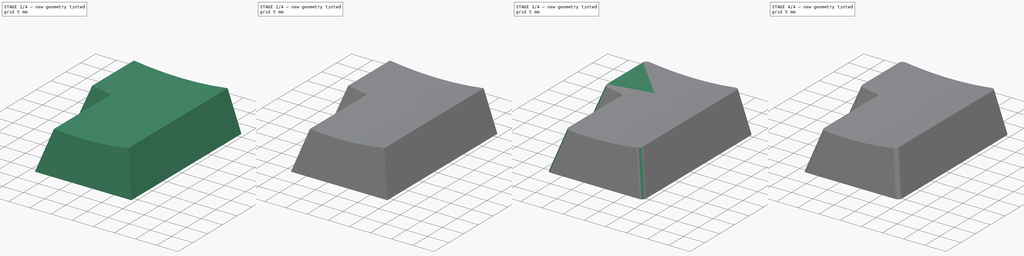
[diagram: build sequence overview — one tinted view per stage of 4, left to right]
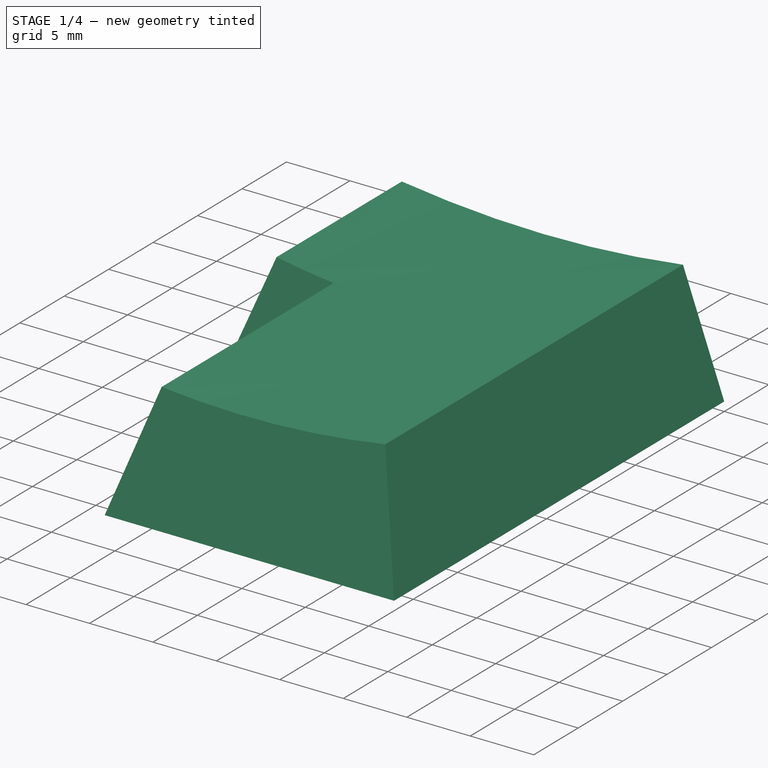
[diagram: stage 1 of 4 — iso view after this stage's code; geometry added in this stage tinted green]
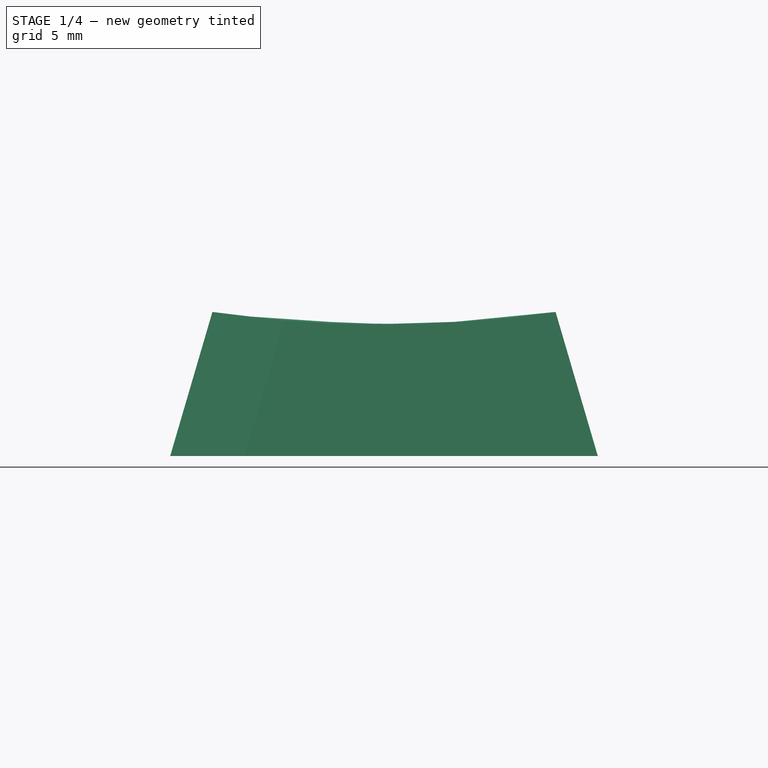
[diagram: stage 1 of 4 — front view after this stage's code; geometry added in this stage tinted green]
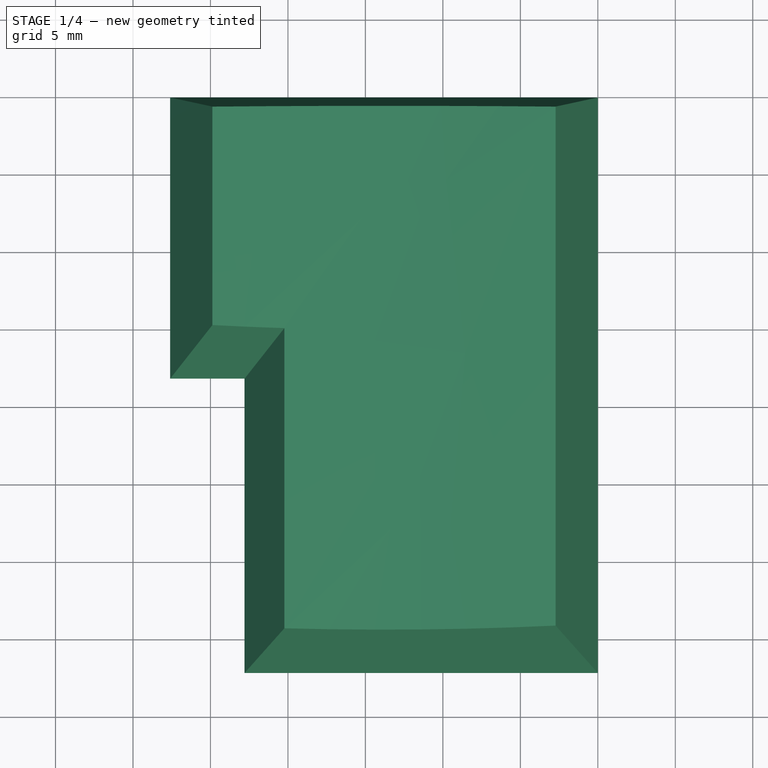
[diagram: stage 1 of 4 — top view after this stage's code; geometry added in this stage tinted green]
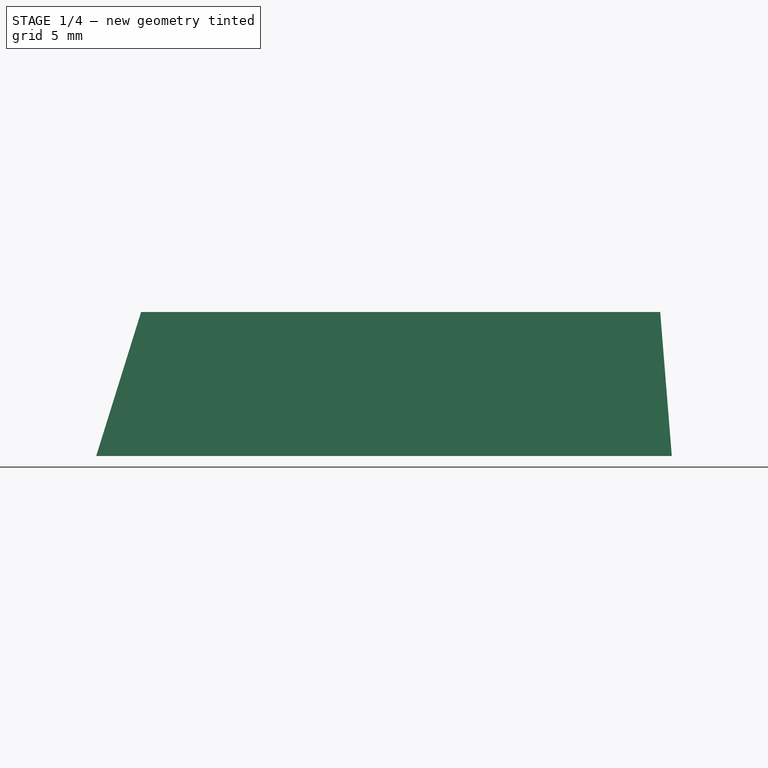
[diagram: stage 1 of 4 — right view after this stage's code; geometry added in this stage tinted green]
FCSTD DOCUMENT  (FreeCAD 1.1R20260325 (Git shallow))
Label: Caps-ISO-return
License: Creative Commons Attribution 4.0
objects: Part::DatumPlane×7, Sketcher::SketchObject×5, Part::DatumLine×5, PartDesign::Fillet×3, PartDesign::Pad×2, App::Point×1, Spreadsheet::Sheet×1, PartDesign::AdditiveLoft×1, PartDesign::Pocket×1, PartDesign::Thickness×1, PartDesign::Chamfer×1, PartDesign::Body×1
note: 38 computed .brp shape members not serialized (recipe doc carries the construction recipe); baked Part::Feature solids carry a one-line shape summary decoded from their .brp

FEATURE [App::Point] Origin001
  Role = Origin
FEATURE [Spreadsheet::Sheet] Spreadsheet  label="data"
  cells = A1='row; B1='back; C1='front; A2==hiddenref(Body.Row.String); B2(back)==.B3; C2(front)==.C3; A3='R1; B3(r1back)=8.1; C3(r1front)=11.5; A4='R2; B4(r2back)=7.9; C4(r2front)=10.2; A5='R3; B5(r3back)=9; C5=11.25; A6='R4; B6=12.25; C6=11.9
  expr: .cells.Bind.B2.C2 = tuple(.cells; <<B>> + str(hiddenref(Body.Row) + 3); <<C>> + str(hiddenref(Body.Row) + 3))
FEATURE [Part::DatumPlane] DatumPlane  label="Bottom plane of reinforcements"
  AttachmentOffset = pos=(0,0,5.9) rot=(0,0,1;0rad)
  AttachmentSupport = -> [Origin]
  MapMode = 5
  Placement = pos=(0,0,5.9) rot=(0,0,1;0rad)
FEATURE [Sketcher::SketchObject] Sketch009  label="Base sketch"
  ArcFitTolerance = 1e-06
  AttachmentSupport = -> [Origin]
  ExternalTypes = [0]
  FullyConstrained = true
  MakeInternals = false
  MapMode = 5
  _ExternalGeoVersion = 1
  sketch-geometry (6):
    g0: LineSegment StartX=0 StartY=0 StartZ=0 EndX=-27.6 EndY=0 EndZ=0
    g1: LineSegment StartX=-27.6 StartY=0 StartZ=0 EndX=-27.6 EndY=-18.15 EndZ=0
    g2: LineSegment StartX=-27.6 StartY=-18.15 StartZ=0 EndX=-22.8 EndY=-18.15 EndZ=0
    g3: LineSegment StartX=-22.8 StartY=-18.15 StartZ=0 EndX=-22.8 EndY=-37.15 EndZ=0
    g4: LineSegment StartX=-22.8 StartY=-37.15 StartZ=0 EndX=0 EndY=-37.15 EndZ=0
    g5: LineSegment StartX=0 StartY=-37.15 StartZ=0 EndX=0 EndY=0 EndZ=0
  constraints (17):
    c: Coincident(g-1,g0)
    c: Coincident(g0,g1)
    c: Vertical(g1)
    c: Coincident(g1,g2)
    c: Horizontal(g2)
    c: Coincident(g2,g3)
    c: Vertical(g3)
    c: Coincident(g3,g4)
    c: Horizontal(g4)
    c: Coincident(g4,g5)
    c: Coincident(g5,g0)
    c: Vertical(g5)
    c: Horizontal(g0)
    c: DistanceX(g0,g0) = 27.6
    c: DistanceX(g4,g4) = 22.8
    c: DistanceY(g5,g5) = 37.15
    c: DistanceY(g1,g1) = 18.15
FEATURE [Sketcher::SketchObject] Sketch010  label="Top sketch"
  ArcFitTolerance = 1e-06
  AttachmentOffset = pos=(0,0,9.3) rot=(0,0,1;0rad)
  AttachmentSupport = -> [Sketch009]
  ExternalGeometry = -> [Sketch009]
  ExternalTypes = [0,0]
  FullyConstrained = true
  MakeInternals = false
  MapMode = 2
  Placement = pos=(0,0,9.3) rot=(0,0,1;0rad)
  _ExternalGeoVersion = 1
  sketch-geometry (10):
    g0: LineSegment StartX=-24.875 StartY=-0.75 StartZ=0 EndX=-2.725 EndY=-0.75 EndZ=0
    g1: LineSegment StartX=-2.725 StartY=-0.75 StartZ=0 EndX=-2.725 EndY=-34.25 EndZ=0
    g2: LineSegment StartX=-2.725 StartY=-34.25 StartZ=0 EndX=-20.075 EndY=-34.25 EndZ=0
    g3: LineSegment StartX=-20.075 StartY=-34.25 StartZ=0 EndX=-20.075 EndY=-14.85 EndZ=0
    g4: LineSegment StartX=-20.075 StartY=-14.85 StartZ=0 EndX=-24.875 EndY=-14.85 EndZ=0
    g5: LineSegment StartX=-24.875 StartY=-14.85 StartZ=0 EndX=-24.875 EndY=-0.75 EndZ=0
    g6: GeomPoint [constr] X=-13.8 Y=0 Z=0
    g7: GeomPoint [constr] X=-11.4 Y=-37.15 Z=0
    g8: GeomPoint [constr] X=-13.8 Y=-0.75 Z=0
    g9: GeomPoint [constr] X=-11.4 Y=-34.25 Z=0
  constraints (22):
    c: Horizontal(g0)
    c: Coincident(g0,g1)
    c: Vertical(g1)
    c: Coincident(g1,g2)
    c: Horizontal(g2)
    c: Coincident(g2,g3)
    c: Vertical(g3)
    c: Coincident(g3,g4)
    c: Horizontal(g4)
    c: Coincident(g4,g5)
    c: Coincident(g5,g0)
    c: Vertical(g5)
    c: DistanceY(g0,g-1) = 0.75
    c: Symmetric(g-3,g-3,g7)
    c: Symmetric(g-4,g-4,g6)
    c: DistanceX(g0,g0) = 22.15
    c: Symmetric(g0,g0,g8)
    c: Vertical(g8,g6)
    c: Symmetric(g2,g2,g9)
    c: Vertical(g9,g7)
    c: DistanceY(g1,g1) = 33.5
    c: DistanceY(g5,g5) = 14.1
FEATURE [PartDesign::AdditiveLoft] AdditiveLoft
  Closed = false
  Profile = -> Sketch009
  Ruled = false
  Sections = -> [Sketch010]
  Suppressed = false
FEATURE [Sketcher::SketchObject] Sketch001
  ArcFitTolerance = 1e-06
  AttachmentSupport = -> [AdditiveLoft]
  ExternalGeometry = -> [AdditiveLoft]
  ExternalTypes = [0]
  FullyConstrained = true
  MakeInternals = false
  MapMode = 45
  Placement = pos=(-13.8,-0.361307,4.4802) rot=(-0.561229,-0.561229,-0.608312;2.04858rad)
  _ExternalGeoVersion = 1
  sketch-geometry (3):
    g0: ArcOfCircle CenterX=81.0952 CenterY=1.58e-14 CenterZ=0 NormalX=0 NormalY=0 NormalZ=1 AngleXU=0 Radius=77.0598 StartAngle=2.99737 EndAngle=3.28581
    g1: GeomPoint [constr] X=4.03545 Y=1.3e-15 Z=0
    g2: GeomPoint [constr] X=4.83545 Y=1.3e-15 Z=0
  constraints (6):
    c: PointOnObject(g1,g0)
    c: Symmetric(g0,g0,g2)
    c: Horizontal(g1,g2)
    c: DistanceX(g1,g2) = 0.8
    c: Coincident(g0,g-3)
    c: Coincident(g0,g-3)
FEATURE [PartDesign::Pocket] Pocket  label="Top cylinder"
  BaseFeature = -> AdditiveLoft
  Direction = (0,1,0)
  Length = 5
  Length2 = 5
  Profile = -> Sketch001
  ReferenceAxis = -> AdditiveLoft [Edge10]
  Reversed = true
  SideType = 0
  Suppressed = false
  Type = 1
  Type2 = 0
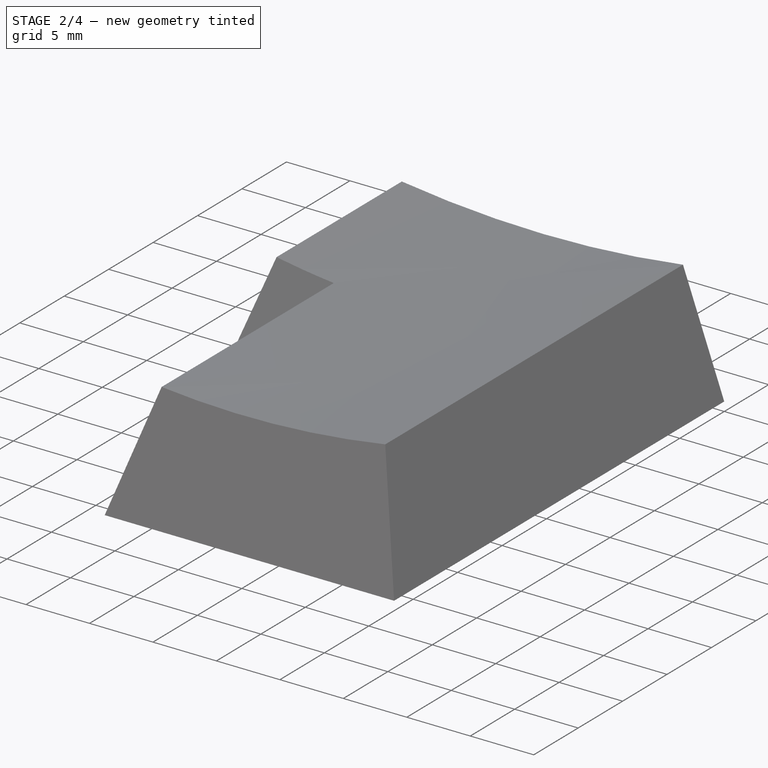
[diagram: stage 2 of 4 — iso view after this stage's code; geometry added in this stage tinted green]
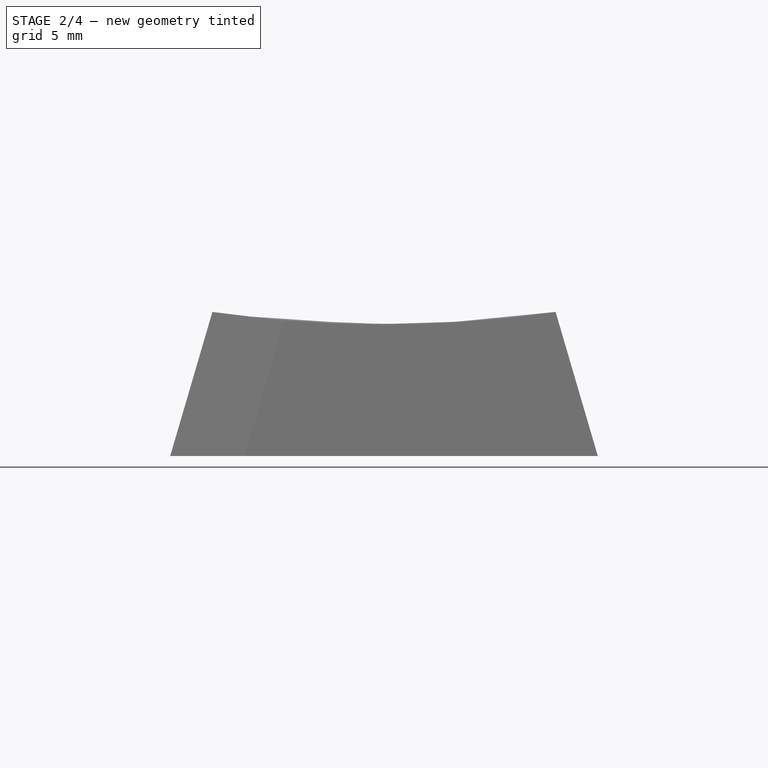
[diagram: stage 2 of 4 — front view after this stage's code; geometry added in this stage tinted green]
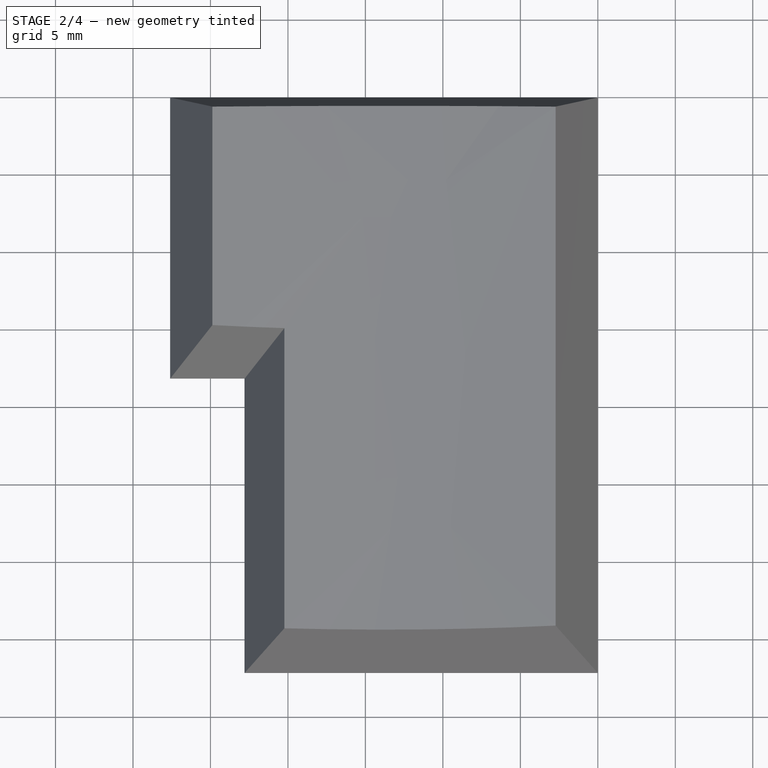
[diagram: stage 2 of 4 — top view after this stage's code; geometry added in this stage tinted green]
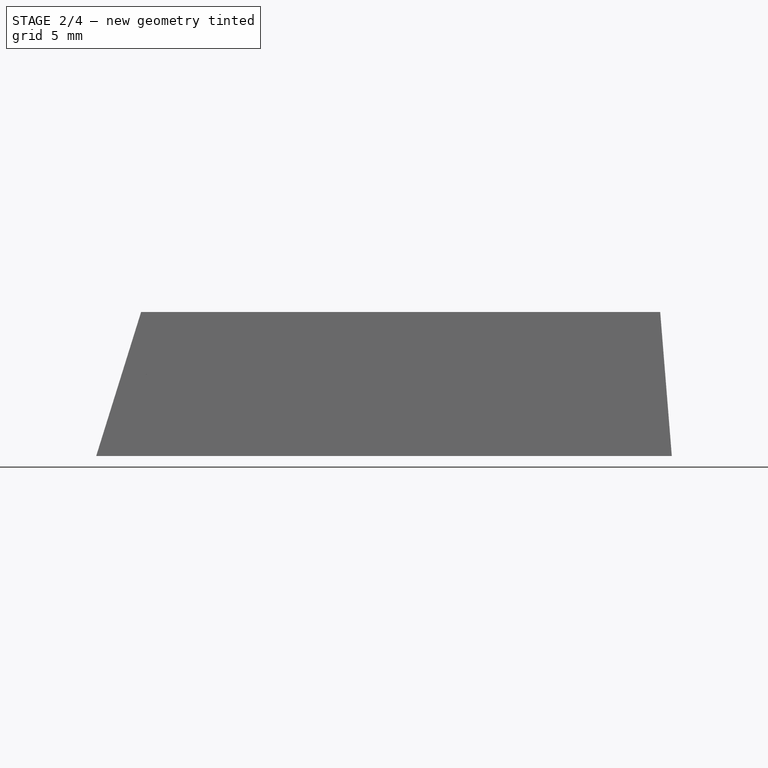
[diagram: stage 2 of 4 — right view after this stage's code; geometry added in this stage tinted green]
FEATURE [PartDesign::Thickness] Thickness
  Base = -> Pocket [Face1]
  BaseFeature = -> Pocket
  Intersection = false
  Join = 0
  Mode = 0
  Reversed = true
  SupportTransform = false
  Suppressed = false
  Value = 1.5
FEATURE [Sketcher::SketchObject] Sketch004
  ArcFitTolerance = 1e-06
  AttachmentOffset = pos=(0,0,1.3) rot=(0,0,1;0rad)
  AttachmentSupport = -> [Origin]
  ExternalGeometry = -> [AdditiveLoft]
  ExternalTypes = [0]
  FullyConstrained = true
  MakeInternals = false
  MapMode = 5
  Placement = pos=(0,0,1.3) rot=(0,0,1;0rad)
  _ExternalGeoVersion = 1
  sketch-geometry (41):
    g0: Circle CenterX=-11.4 CenterY=-18.575 CenterZ=0 NormalX=0 NormalY=0 NormalZ=1 AngleXU=0 Radius=2.8
    g1: LineSegment StartX=-12 StartY=-16.425 StartZ=0 EndX=-10.8 EndY=-16.425 EndZ=0
    g2: LineSegment StartX=-10.8 StartY=-16.425 StartZ=0 EndX=-10.8 EndY=-17.975 EndZ=0
    g3: LineSegment StartX=-10.8 StartY=-17.975 StartZ=0 EndX=-9.25 EndY=-17.975 EndZ=0
    g4: LineSegment StartX=-9.25 StartY=-17.975 StartZ=0 EndX=-9.25 EndY=-19.175 EndZ=0
    g5: LineSegment StartX=-9.25 StartY=-19.175 StartZ=0 EndX=-10.8 EndY=-19.175 EndZ=0
    g6: LineSegment StartX=-10.8 StartY=-19.175 StartZ=0 EndX=-10.8 EndY=-20.725 EndZ=0
    g7: LineSegment StartX=-10.8 StartY=-20.725 StartZ=0 EndX=-12 EndY=-20.725 EndZ=0
    g8: LineSegment StartX=-12 StartY=-20.725 StartZ=0 EndX=-12 EndY=-19.175 EndZ=0
    g9: LineSegment StartX=-12 StartY=-19.175 StartZ=0 EndX=-13.55 EndY=-19.175 EndZ=0
    g10: LineSegment StartX=-13.55 StartY=-19.175 StartZ=0 EndX=-13.55 EndY=-17.975 EndZ=0
    g11: LineSegment StartX=-13.55 StartY=-17.975 StartZ=0 EndX=-12 EndY=-17.975 EndZ=0
    g12: LineSegment StartX=-12 StartY=-17.975 StartZ=0 EndX=-12 EndY=-16.425 EndZ=0
    g13: GeomPoint [constr] X=-11.4 Y=-37.15 Z=0
    g14: GeomPoint [constr] X=0 Y=-18.575 Z=0
    g15: Circle CenterX=-11.4 CenterY=-6.635 CenterZ=0 NormalX=0 NormalY=0 NormalZ=1 AngleXU=0 Radius=2.8
    g16: Circle CenterX=-11.4 CenterY=-30.515 CenterZ=0 NormalX=0 NormalY=0 NormalZ=1 AngleXU=0 Radius=2.8
    g17: LineSegment StartX=-12 StartY=-4.485 StartZ=0 EndX=-10.8 EndY=-4.485 EndZ=0
    g18: LineSegment StartX=-10.8 StartY=-4.485 StartZ=0 EndX=-10.8 EndY=-6.035 EndZ=0
    g19: LineSegment StartX=-10.8 StartY=-6.035 StartZ=0 EndX=-9.25 EndY=-6.035 EndZ=0
    g20: LineSegment StartX=-9.25 StartY=-6.035 StartZ=0 EndX=-9.25 EndY=-7.235 EndZ=0
    g21: LineSegment StartX=-9.25 StartY=-7.235 StartZ=0 EndX=-10.8 EndY=-7.235 EndZ=0
    g22: LineSegment StartX=-10.8 StartY=-7.235 StartZ=0 EndX=-10.8 EndY=-8.785 EndZ=0
    g23: LineSegment StartX=-10.8 StartY=-8.785 StartZ=0 EndX=-12 EndY=-8.785 EndZ=0
    g24: LineSegment StartX=-12 StartY=-8.785 StartZ=0 EndX=-12 EndY=-7.235 EndZ=0
    g25: LineSegment StartX=-12 StartY=-7.235 StartZ=0 EndX=-13.55 EndY=-7.235 EndZ=0
    g26: LineSegment StartX=-13.55 StartY=-7.235 StartZ=0 EndX=-13.55 EndY=-6.035 EndZ=0
    g27: LineSegment StartX=-13.55 StartY=-6.035 StartZ=0 EndX=-12 EndY=-6.035 EndZ=0
    g28: LineSegment StartX=-12 StartY=-6.035 StartZ=0 EndX=-12 EndY=-4.485 EndZ=0
    g29: LineSegment StartX=-12 StartY=-28.365 StartZ=0 EndX=-10.8 EndY=-28.365 EndZ=0
    g30: LineSegment StartX=-10.8 StartY=-28.365 StartZ=0 EndX=-10.8 EndY=-29.915 EndZ=0
    g31: LineSegment StartX=-10.8 StartY=-29.915 StartZ=0 EndX=-9.25 EndY=-29.915 EndZ=0
    g32: LineSegment StartX=-9.25 StartY=-29.915 StartZ=0 EndX=-9.25 EndY=-31.115 EndZ=0
    g33: LineSegment StartX=-9.25 StartY=-31.115 StartZ=0 EndX=-10.8 EndY=-31.115 EndZ=0
    g34: LineSegment StartX=-10.8 StartY=-31.115 StartZ=0 EndX=-10.8 EndY=-32.665 EndZ=0
    g35: LineSegment StartX=-10.8 StartY=-32.665 StartZ=0 EndX=-12 EndY=-32.665 EndZ=0
    g36: LineSegment StartX=-12 StartY=-32.665 StartZ=0 EndX=-12 EndY=-31.115 EndZ=0
    g37: LineSegment StartX=-12 StartY=-31.115 StartZ=0 EndX=-13.55 EndY=-31.115 EndZ=0
    g38: LineSegment StartX=-13.55 StartY=-31.115 StartZ=0 EndX=-13.55 EndY=-29.915 EndZ=0
    g39: LineSegment StartX=-13.55 StartY=-29.915 StartZ=0 EndX=-12 EndY=-29.915 EndZ=0
    g40: LineSegment StartX=-12 StartY=-29.915 StartZ=0 EndX=-12 EndY=-28.365 EndZ=0
  constraints (115):
    c: Diameter(g0) = 5.6
    c: Horizontal(g1)
    c: Coincident(g1,g2)
    c: Vertical(g2)
    c: Coincident(g2,g3)
    c: Horizontal(g3)
    c: Coincident(g3,g4)
    c: Vertical(g4)
    c: Coincident(g4,g5)
    c: Horizontal(g5)
    c: Coincident(g5,g6)
    c: Vertical(g6)
    c: Coincident(g6,g7)
    c: Horizontal(g7)
    c: Coincident(g7,g8)
    c: Vertical(g8)
    c: Coincident(g8,g9)
    c: Horizontal(g9)
    c: Coincident(g9,g10)
    c: Vertical(g10)
    c: Coincident(g10,g11)
    c: Horizontal(g11)
    c: Coincident(g11,g12)
    c: Coincident(g12,g1)
    c: Vertical(g12)
    c: Vertical(g11,g8)
    c: Vertical(g2,g5)
    c: Horizontal(g11,g2)
    c: Horizontal(g8,g5)
    c: DistanceY(g4,g4) = 1.2
    c: DistanceX(g1,g1) = 1.2
    c: Equal(g2,g3)
    c: Equal(g3,g9)
    c: Equal(g9,g8)
    c: Symmetric(g8,g2,g0)
    c: DistanceY(g6,g1) = 4.3
    c: Symmetric(g-3,g-3,g13)
    c: Vertical(g13,g0)
    c: Symmetric(g-1,g-3,g14)
    c: Horizontal(g0,g14)
    c: Equal(g15,g0)
    c: Vertical(g0,g15)
    c: Equal(g0,g16)
    c: Symmetric(g16,g15,g0)
    c: DistanceY(g16,g15) = 23.88
    c: Horizontal(g17)
    c: Coincident(g17,g18)
    c: Vertical(g18)
    c: Coincident(g18,g19)
    c: Horizontal(g19)
    c: Coincident(g19,g20)
    c: Vertical(g20)
    c: Coincident(g20,g21)
    c: Horizontal(g21)
    c: Coincident(g21,g22)
    c: Vertical(g22)
    c: Coincident(g22,g23)
    c: Horizontal(g23)
    c: Coincident(g23,g24)
    c: Vertical(g24)
    c: Coincident(g24,g25)
    c: Horizontal(g25)
    c: Coincident(g25,g26)
    c: Vertical(g26)
    c: Coincident(g26,g27)
    c: Horizontal(g27)
    c: Coincident(g27,g28)
    c: Coincident(g28,g17)
    c: Vertical(g28)
    c: Vertical(g27,g24)
    c: Vertical(g18,g21)
    c: Horizontal(g27,g18)
    c: Horizontal(g24,g21)
    c: Vertical(g1,g23)
    c: Symmetric(g24,g18,g15)
    c: Equal(g18,g19)
    c: Equal(g19,g25)
    c: Equal(g25,g24)
    c: Equal(g17,g20)
    c: Vertical(g3,g20)
    c: Horizontal(g29)
    c: Coincident(g29,g30)
    c: Vertical(g30)
    c: Coincident(g30,g31)
    c: Horizontal(g31)
    c: Coincident(g31,g32)
    c: Vertical(g32)
    c: Coincident(g32,g33)
    c: Horizontal(g33)
    c: Coincident(g33,g34)
    c: Vertical(g34)
    c: Coincident(g34,g35)
    c: Horizontal(g35)
    c: Coincident(g35,g36)
    c: Vertical(g36)
    c: Coincident(g36,g37)
    c: Horizontal(g37)
    c: Coincident(g37,g38)
    c: Vertical(g38)
    c: Coincident(g38,g39)
    c: Horizontal(g39)
    c: Coincident(g39,g40)
    c: Coincident(g40,g29)
    c: Vertical(g40)
    c: Vertical(g39,g36)
    c: Vertical(g30,g33)
    c: Horizontal(g39,g30)
    c: Horizontal(g36,g33)
    c: Symmetric(g36,g30,g16)
    c: Equal(g30,g31)
    c: Equal(g31,g37)
    c: Equal(g37,g36)
    c: Equal(g29,g32)
    c: Vertical(g6,g29)
    c: Vertical(g31,g4)
FEATURE [Part::DatumPlane] DatumPlane001  label="Front left internal plane"
  AttachmentSupport = -> [Thickness]
  MapMode = 5
  Placement = pos=(-19.5578,-1e-16,5.73064) rot=(0.624872,0.624872,0.46805;2.26607rad)
FEATURE [Part::DatumLine] DatumLine
  AttacherType = Attacher::AttachEngineLine
  AttachmentSupport = -> [DatumPlane001,DatumPlane]
  MapMode = 30
  Placement = pos=(-19.5082,-1e-16,5.9) rot=(1,0,0;1.5708rad)
FEATURE [Part::DatumPlane] DatumPlane005  label="Internal feature top limiting plane"
  AttachmentSupport = -> [Thickness]
  MapMode = 13
  Placement = pos=(-10.4672,-12.4795,7.63943) rot=(0,1,0;3.14159rad)
FEATURE [PartDesign::Pad] Pad001  label="Stems"
  BaseFeature = -> Thickness
  Direction = (0,0,1)
  Length = 10
  Length2 = 10
  Profile = -> Sketch004
  ReferenceAxis = -> Sketch004 [N_Axis]
  SideType = 0
  Suppressed = false
  Type = 3
  Type2 = 0
  UpToFace = -> DatumPlane005
  UpToShape = -> [Thickness]
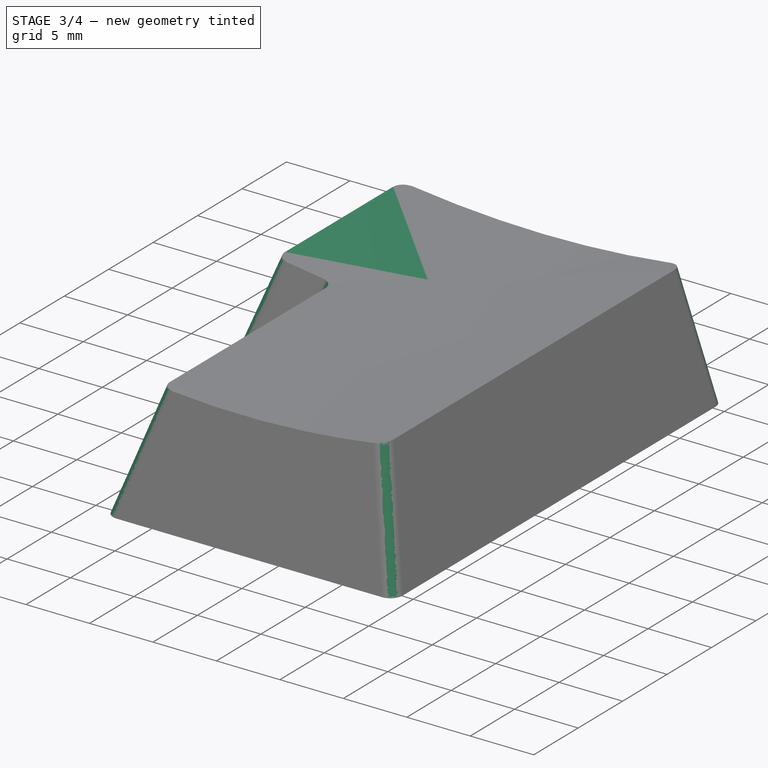
[diagram: stage 3 of 4 — iso view after this stage's code; geometry added in this stage tinted green]
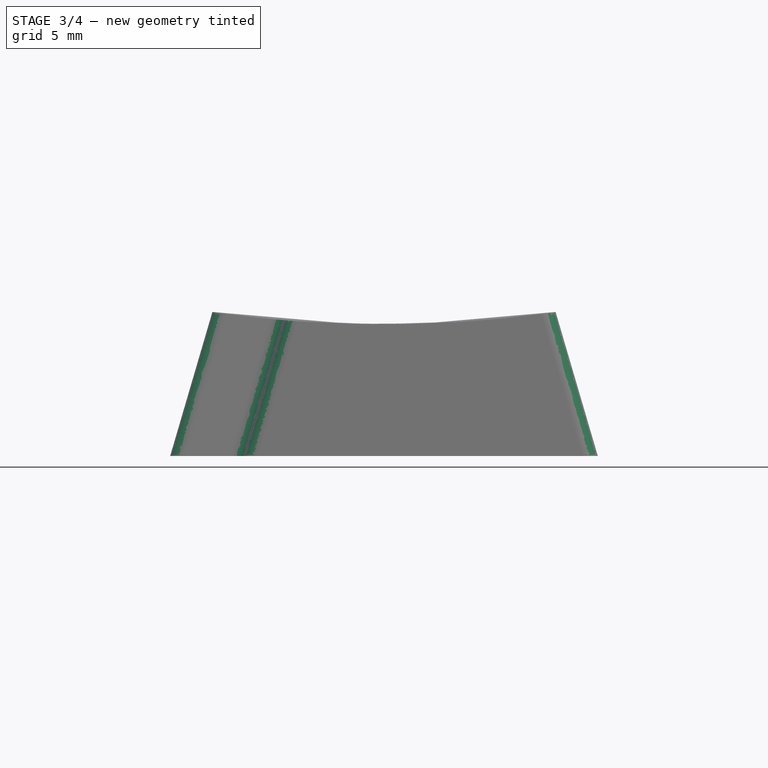
[diagram: stage 3 of 4 — front view after this stage's code; geometry added in this stage tinted green]
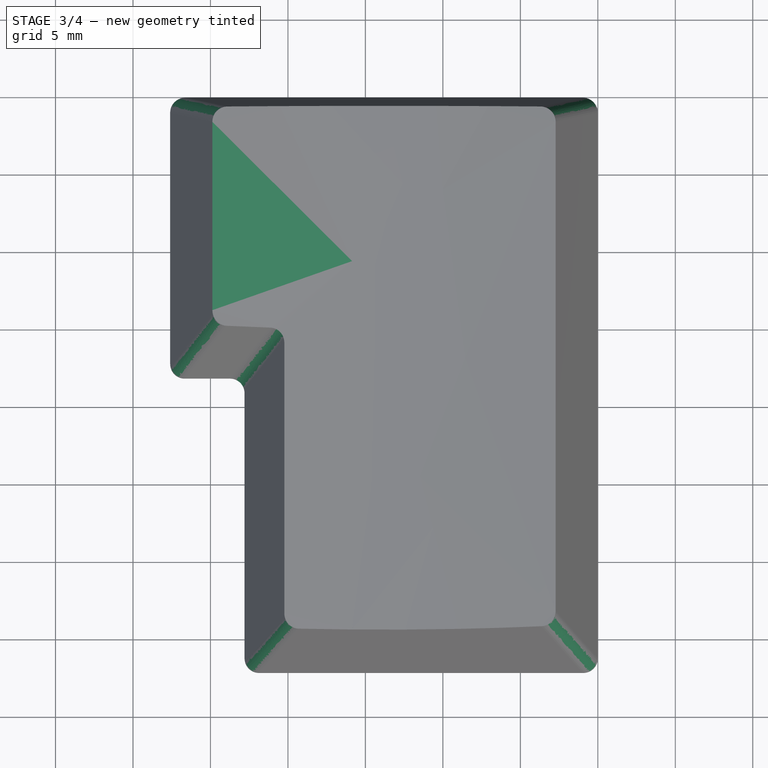
[diagram: stage 3 of 4 — top view after this stage's code; geometry added in this stage tinted green]
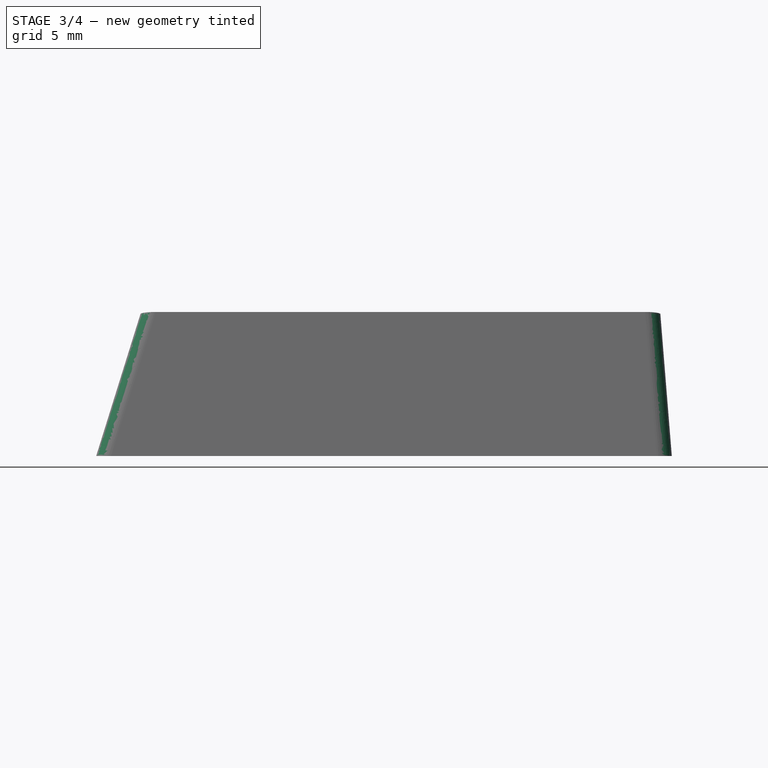
[diagram: stage 3 of 4 — right view after this stage's code; geometry added in this stage tinted green]
FEATURE [Part::DatumPlane] DatumPlane002  label="Right internal plane"
  AttachmentSupport = -> [Pad001]
  MapMode = 5
  Placement = pos=(-1.43948,0,-0.421783) rot=(0.624872,-0.624872,-0.46805;2.26607rad)
FEATURE [Part::DatumLine] DatumLine001
  AttacherType = Attacher::AttachEngineLine
  AttachmentSupport = -> [DatumPlane,DatumPlane002]
  MapMode = 30
  Placement = pos=(-3.29183,0,5.9) rot=(1,0,0;1.5708rad)
FEATURE [Part::DatumPlane] DatumPlane003  label="Front internal plane"
  AttachmentSupport = -> [Pad001]
  MapMode = 5
  Placement = pos=(2e-16,-32.4258,10.1113) rot=(0,0.805509,0.592583;3.14159rad)
FEATURE [Part::DatumLine] DatumLine002
  AttacherType = Attacher::AttachEngineLine
  AttachmentSupport = -> [DatumPlane003,DatumPlane]
  MapMode = 30
  Placement = pos=(2e-16,-33.739,5.9) rot=(0.57735,0.57735,0.57735;2.0944rad)
FEATURE [Part::DatumPlane] DatumPlane004  label="Back internal plane"
  AttachmentSupport = -> [Pad001]
  MapMode = 5
  Placement = pos=(0,-1.49515,-0.120576) rot=(1,0,0;1.65127rad)
FEATURE [Part::DatumLine] DatumLine003
  AttacherType = Attacher::AttachEngineLine
  AttachmentSupport = -> [DatumPlane004,DatumPlane]
  MapMode = 30
  Placement = pos=(0,-1.98068,5.9) rot=(0.57735,-0.57735,-0.57735;2.0944rad)
FEATURE [Part::DatumPlane] DatumPlane006  label="Back left internal plane"
  AttachmentSupport = -> [Pad001]
  MapMode = 5
  Placement = pos=(-23.9783,-2e-16,7.02589) rot=(0.624872,0.624872,0.46805;2.26607rad)
FEATURE [Part::DatumLine] DatumLine004
  AttacherType = Attacher::AttachEngineLine
  AttachmentSupport = -> [DatumPlane006,DatumPlane]
  MapMode = 30
  Placement = pos=(-24.3082,-2e-16,5.9) rot=(1,0,0;1.5708rad)
FEATURE [Sketcher::SketchObject] Sketch005
  ArcFitTolerance = 1e-06
  AttachmentOffset = pos=(0,0,5.9) rot=(0,0,1;0rad)
  AttachmentSupport = -> [Origin]
  ExternalGeometry = -> [DatumLine001,DatumLine,DatumLine002,DatumLine003,DatumLine004,Sketch004]
  ExternalTypes = [0,0,0,0,0,0,0,0]
  FullyConstrained = true
  MakeInternals = false
  MapMode = 5
  Placement = pos=(0,0,5.9) rot=(0,0,1;0rad)
  _ExternalGeoVersion = 1
  sketch-geometry (30):
    g0: LineSegment [constr] StartX=-3.29183 StartY=-18.575 StartZ=0 EndX=-19.5082 EndY=-18.575 EndZ=0
    g1: LineSegment [constr] StartX=-11.4 StartY=-1.98068 StartZ=0 EndX=-11.4 EndY=-33.739 EndZ=0
    g2: LineSegment StartX=-3.29183 StartY=-17.975 StartZ=0 EndX=-3.29183 EndY=-19.175 EndZ=0
    g3: LineSegment StartX=-10.8 StartY=-1.98068 StartZ=0 EndX=-12 EndY=-1.98068 EndZ=0
    g4: LineSegment StartX=-3.29183 StartY=-17.975 StartZ=0 EndX=-10.8 EndY=-17.975 EndZ=0
    g5: LineSegment StartX=-3.29183 StartY=-19.175 StartZ=0 EndX=-10.8 EndY=-19.175 EndZ=0
    g6: LineSegment StartX=-10.8 StartY=-17.975 StartZ=0 EndX=-10.8 EndY=-7.235 EndZ=0
    g7: LineSegment StartX=-12 StartY=-17.975 StartZ=0 EndX=-12 EndY=-7.235 EndZ=0
    g8: LineSegment StartX=-10.8 StartY=-19.175 StartZ=0 EndX=-10.8 EndY=-29.915 EndZ=0
    g9: LineSegment StartX=-12 StartY=-19.175 StartZ=0 EndX=-12 EndY=-29.915 EndZ=0
    g10: LineSegment StartX=-10.8 StartY=-33.739 StartZ=0 EndX=-12 EndY=-33.739 EndZ=0
    g11: LineSegment StartX=-19.5082 StartY=-17.975 StartZ=0 EndX=-19.5082 EndY=-19.175 EndZ=0
    g12: LineSegment StartX=-12 StartY=-17.975 StartZ=0 EndX=-19.5082 EndY=-17.975 EndZ=0
    g13: LineSegment StartX=-12 StartY=-19.175 StartZ=0 EndX=-19.5082 EndY=-19.175 EndZ=0
    g14: LineSegment StartX=-12 StartY=-6.035 StartZ=0 EndX=-12 EndY=-1.98068 EndZ=0
    g15: LineSegment StartX=-10.8 StartY=-6.035 StartZ=0 EndX=-10.8 EndY=-1.98068 EndZ=0
    g16: LineSegment StartX=-12 StartY=-31.115 StartZ=0 EndX=-12 EndY=-33.739 EndZ=0
    g17: LineSegment StartX=-10.8 StartY=-31.115 StartZ=0 EndX=-10.8 EndY=-33.739 EndZ=0
    g18: LineSegment StartX=-12 StartY=-6.035 StartZ=0 EndX=-24.3082 EndY=-6.035 EndZ=0
    g19: LineSegment StartX=-24.3082 StartY=-6.035 StartZ=0 EndX=-24.3082 EndY=-7.235 EndZ=0
    g20: LineSegment StartX=-24.3082 StartY=-7.235 StartZ=0 EndX=-12 EndY=-7.235 EndZ=0
    g21: LineSegment StartX=-10.8 StartY=-6.035 StartZ=0 EndX=-3.29183 EndY=-6.035 EndZ=0
    g22: LineSegment StartX=-3.29183 StartY=-6.035 StartZ=0 EndX=-3.29183 EndY=-7.235 EndZ=0
    g23: LineSegment StartX=-3.29183 StartY=-7.235 StartZ=0 EndX=-10.8 EndY=-7.235 EndZ=0
    g24: LineSegment StartX=-12 StartY=-29.915 StartZ=0 EndX=-19.5082 EndY=-29.915 EndZ=0
    g25: LineSegment StartX=-19.5082 StartY=-29.915 StartZ=0 EndX=-19.5082 EndY=-31.115 EndZ=0
    g26: LineSegment StartX=-19.5082 StartY=-31.115 StartZ=0 EndX=-12 EndY=-31.115 EndZ=0
    g27: LineSegment StartX=-10.8 StartY=-29.915 StartZ=0 EndX=-3.29183 EndY=-29.915 EndZ=0
    g28: LineSegment StartX=-3.29183 StartY=-29.915 StartZ=0 EndX=-3.29183 EndY=-31.115 EndZ=0
    g29: LineSegment StartX=-3.29183 StartY=-31.115 StartZ=0 EndX=-10.8 EndY=-31.115 EndZ=0
  constraints (85):
    c: Horizontal(g0)
    c: PointOnObject(g0,g-4)
    c: PointOnObject(g0,g-3)
    c: PointOnObject(g1,g-6)
    c: PointOnObject(g1,g-5)
    c: Vertical(g1)
    c: PointOnObject(g2,g-3)
    c: Symmetric(g2,g2,g0)
    c: DistanceY(g2,g2) = 1.2
    c: PointOnObject(g3,g-6)
    c: Symmetric(g3,g3,g1)
    c: Coincident(g4,g2)
    c: Coincident(g5,g2)
    c: Coincident(g15,g3)
    c: Coincident(g14,g3)
    c: Coincident(g10,g17)
    c: Coincident(g10,g16)
    c: PointOnObject(g11,g-4)
    c: PointOnObject(g11,g-4)
    c: DistanceX(g3,g3) = 1.2
    c: Horizontal(g4)
    c: PointOnObject(g16,g-5)
    c: PointOnObject(g17,g-5)
    c: Symmetric(g7,g6,g1)
    c: Symmetric(g5,g4,g0)
    c: Symmetric(g9,g8,g1)
    c: PointOnObject(g-8,g1)
    c: PointOnObject(g-8,g0)
    c: Coincident(g4,g6)
    c: Coincident(g5,g8)
    c: Coincident(g12,g7)
    c: Coincident(g12,g11)
    c: Horizontal(g12)
    c: Coincident(g13,g9)
    c: Coincident(g13,g11)
    c: Horizontal(g13)
    c: Vertical(g6)
    c: Vertical(g15)
    c: Vertical(g9)
    c: Vertical(g16)
    c: Vertical(g8)
    c: Vertical(g17)
    c: Vertical(g7)
    c: Vertical(g15,g6)
    c: Symmetric(g6,g14,g-9)
    c: Horizontal(g15,g14)
    c: Horizontal(g6,g7)
    c: Horizontal(g8,g9)
    c: Horizontal(g17,g16)
    c: Vertical(g9,g16)
    c: Symmetric(g17,g9,g-10)
    c: Coincident(g14,g18)
    c: Horizontal(g18)
    c: Coincident(g18,g19)
    c: Vertical(g19)
    c: Coincident(g19,g20)
    c: Coincident(g20,g7)
    c: Horizontal(g20)
    c: PointOnObject(g18,g-7)
    c: Coincident(g15,g21)
    c: Horizontal(g21)
    c: Coincident(g21,g22)
    c: Vertical(g22)
    c: Coincident(g22,g23)
    c: Coincident(g23,g6)
    c: Horizontal(g23)
    c: PointOnObject(g21,g-3)
    c: Equal(g22,g2)
    c: Coincident(g9,g24)
    c: Horizontal(g24)
    c: Coincident(g24,g25)
    c: Vertical(g25)
    c: Coincident(g25,g26)
    c: Coincident(g26,g16)
    c: Horizontal(g26)
    c: Coincident(g8,g27)
    c: Horizontal(g27)
    c: Coincident(g27,g28)
    c: Vertical(g28)
    c: Coincident(g28,g29)
    c: Coincident(g29,g17)
    c: Horizontal(g29)
    c: PointOnObject(g27,g-3)
    c: PointOnObject(g24,g-4)
    c: Equal(g2,g28)
FEATURE [PartDesign::Pad] Pad002  label="Reinforcement"
  BaseFeature = -> Pad001
  Direction = (0,0,1)
  Length = 4.8
  Length2 = 10
  Profile = -> Sketch005
  ReferenceAxis = -> Sketch005 [N_Axis]
  Refine = true
  SideType = 0
  Suppressed = false
  Type = 3
  Type2 = 0
  UpToFace = -> DatumPlane005
FEATURE [PartDesign::Fillet] Fillet  label="External side fillets"
  Base = -> Pad002 [Edge3,Edge13,Edge25,Edge24,Edge7,Edge1]
  BaseFeature = -> Pad002
  Radius = 1
  SupportTransform = false
  Suppressed = false
  UseAllEdges = false
FEATURE [PartDesign::Fillet] Fillet001  label="Internal side fillets"
  Base = -> Fillet [Edge44,Edge50,Edge84,Edge65,Edge51]
  BaseFeature = -> Fillet
  Radius = 0.5
  SupportTransform = false
  Suppressed = false
  UseAllEdges = false
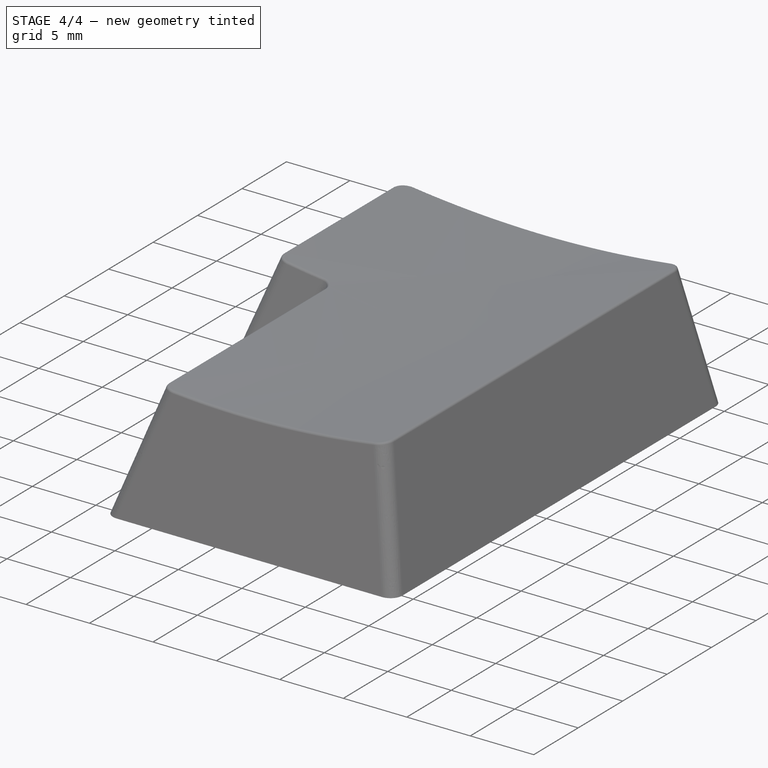
[diagram: stage 4 of 4 — iso view after this stage's code; geometry added in this stage tinted green]
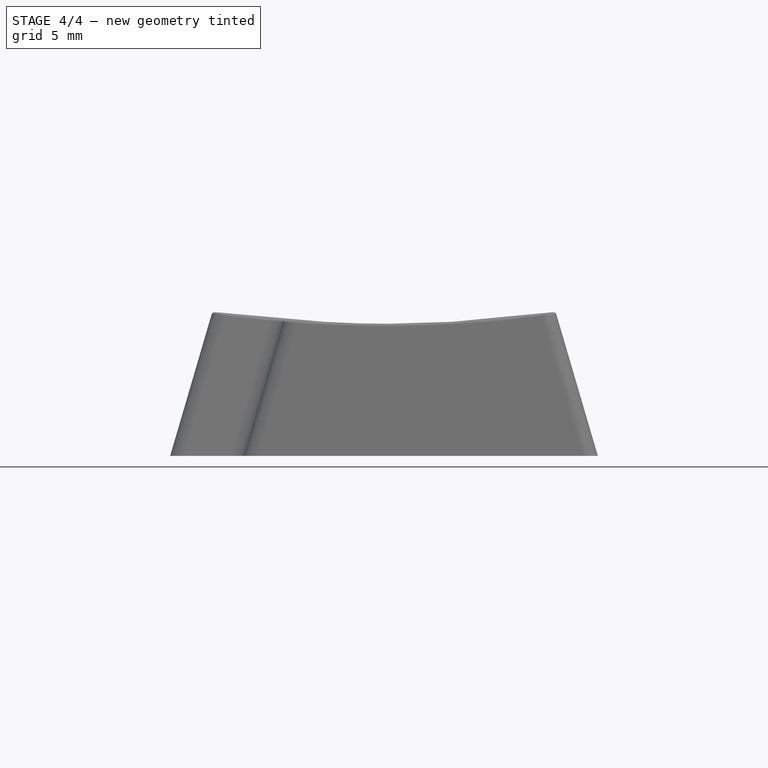
[diagram: stage 4 of 4 — front view after this stage's code; geometry added in this stage tinted green]
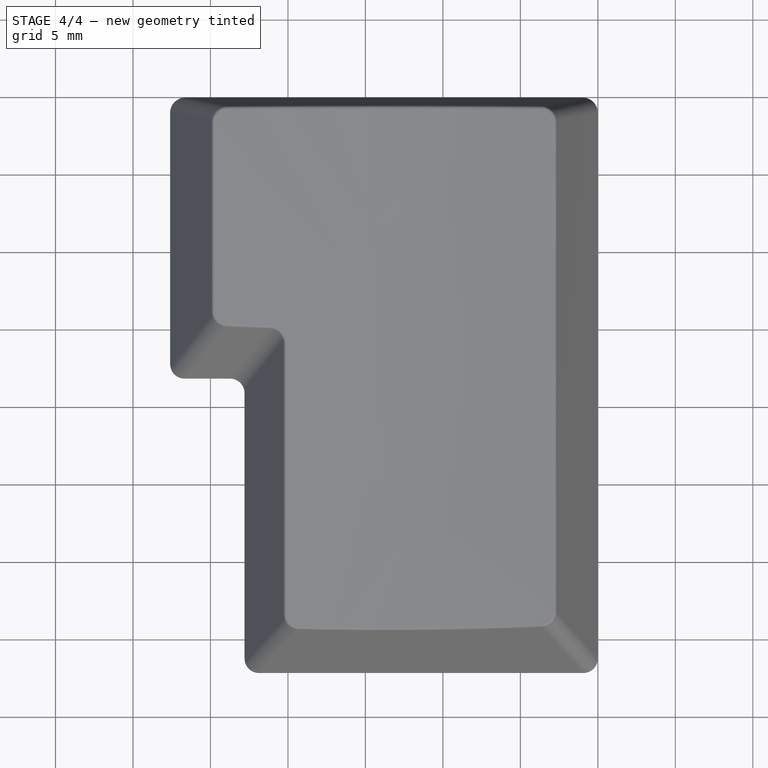
[diagram: stage 4 of 4 — top view after this stage's code; geometry added in this stage tinted green]
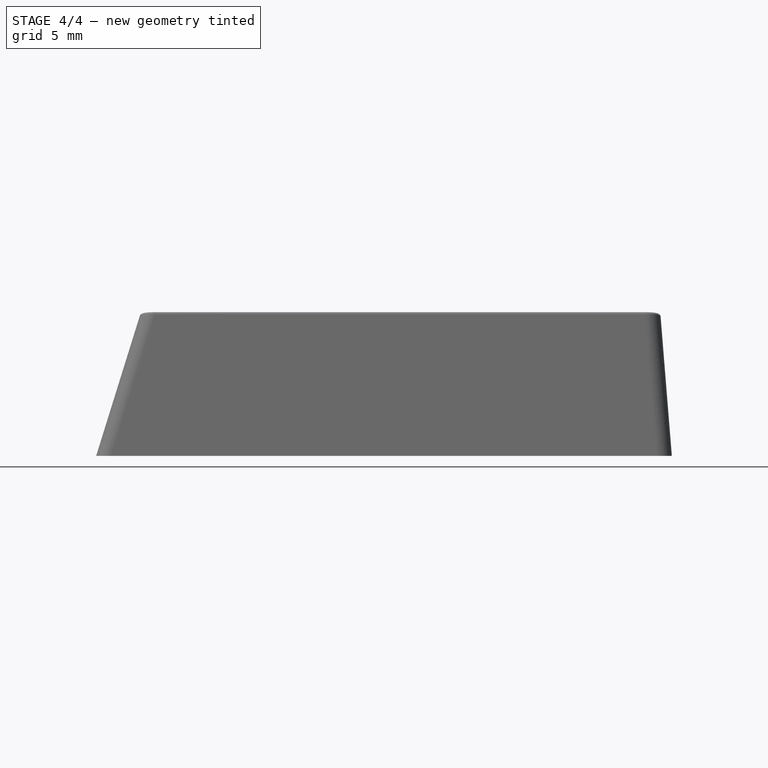
[diagram: stage 4 of 4 — right view after this stage's code; geometry added in this stage tinted green]
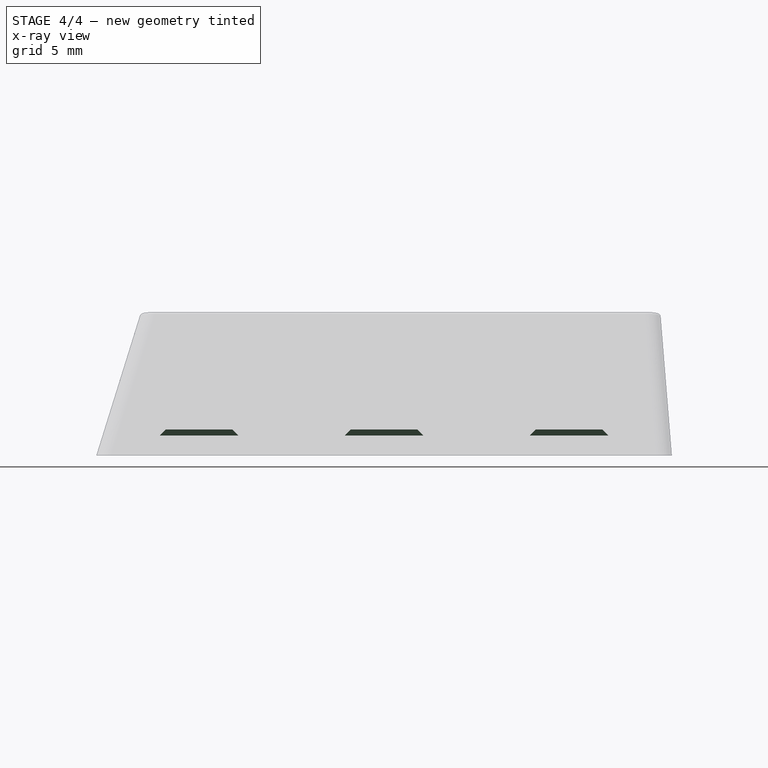
[diagram: stage 4 of 4 — x-ray composite at the right view; earlier geometry ghosted, this stage's added geometry solid]
FEATURE [PartDesign::Fillet] Fillet002  label="Top fillet"
  Base = -> Fillet001 [Edge96]
  BaseFeature = -> Fillet001
  Radius = 0.2
  SupportTransform = false
  Suppressed = false
  UseAllEdges = false
FEATURE [PartDesign::Chamfer] Chamfer  label="Stem chamfer"
  Angle = 45
  Base = -> Fillet002 [Edge242,Edge239,Edge248,Edge245,Edge241,Edge240,Edge250,Edge249,Edge247,Edge246,Edge244,Edge243,Edge254,Edge253,Edge252,Edge251,Edge262,Edge261,Edge260,Edge259,Edge258,Edge257,Edge256,Edge255,Edge230,Edge229,Edge228,Edge227,Edge238,Edge237,Edge236,Edge235,Edge234,Edge233,Edge232,Edge231]
  BaseFeature = -> Fillet002
  ChamferType = 0
  FlipDirection = false
  Size = 0.4
  Size2 = 1
  SupportTransform = false
  Suppressed = false
  UseAllEdges = false
FEATURE [PartDesign::Body] Body  label="OEM"
  AllowCompound = true
  Group = -> [AdditiveLoft,Sketch009,Sketch010,Sketch001,Pocket,Thickness,DatumPlane005,Pad001,DatumPlane,DatumPlane001,DatumLine,DatumPlane002,DatumLine001,DatumPlane003,DatumLine002,DatumPlane004,DatumLine003,DatumPlane006,DatumLine004,Pad002,Fillet,Fillet001,Fillet002,Sketch004,Sketch005,Chamfer]
  Origin = -> Origin
  Placement = pos=(0,0,0) rot=(0,0,1;1.5708rad)
  Row = 0
  Tip = -> Chamfer
  Widthmm = 18.15
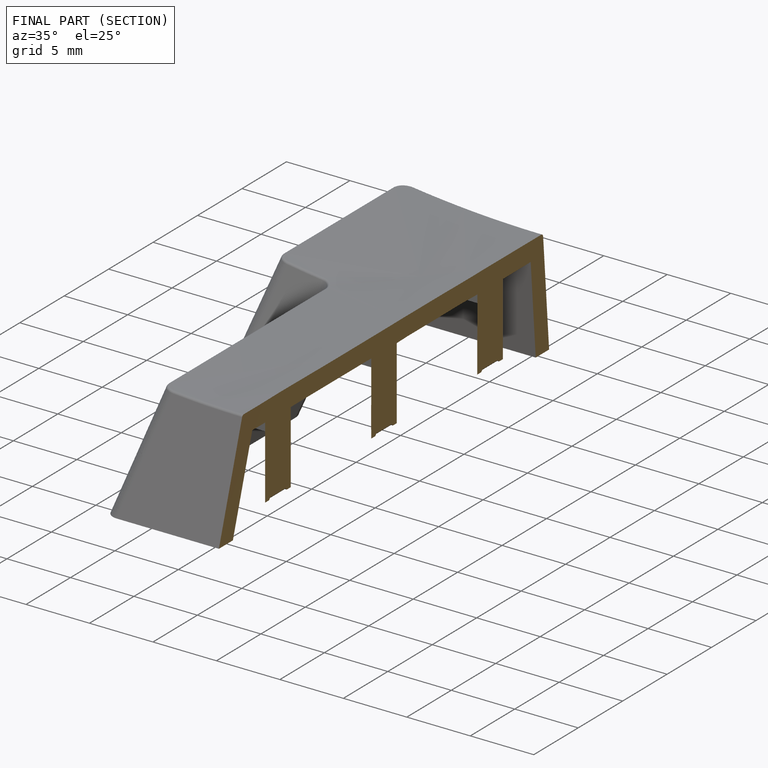
[diagram: finished part — half-section view (interior)]
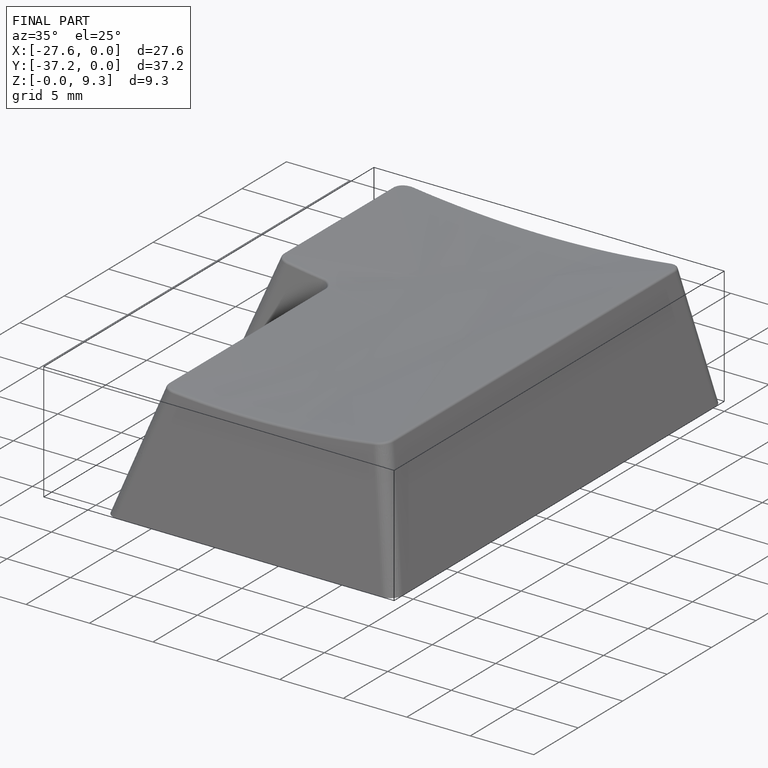
[diagram: finished part — iso view with bounding-box wireframe]
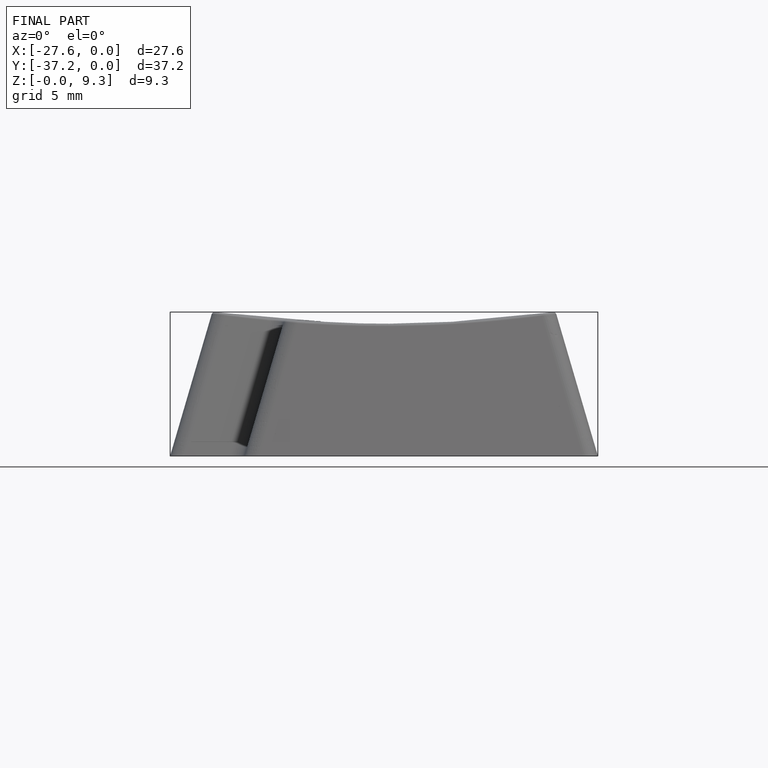
[diagram: finished part — front view with bounding-box wireframe]
